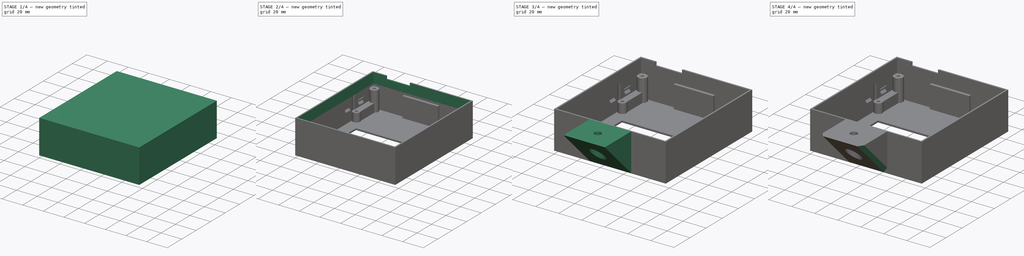
[diagram: build sequence overview — one tinted view per stage of 4, left to right]
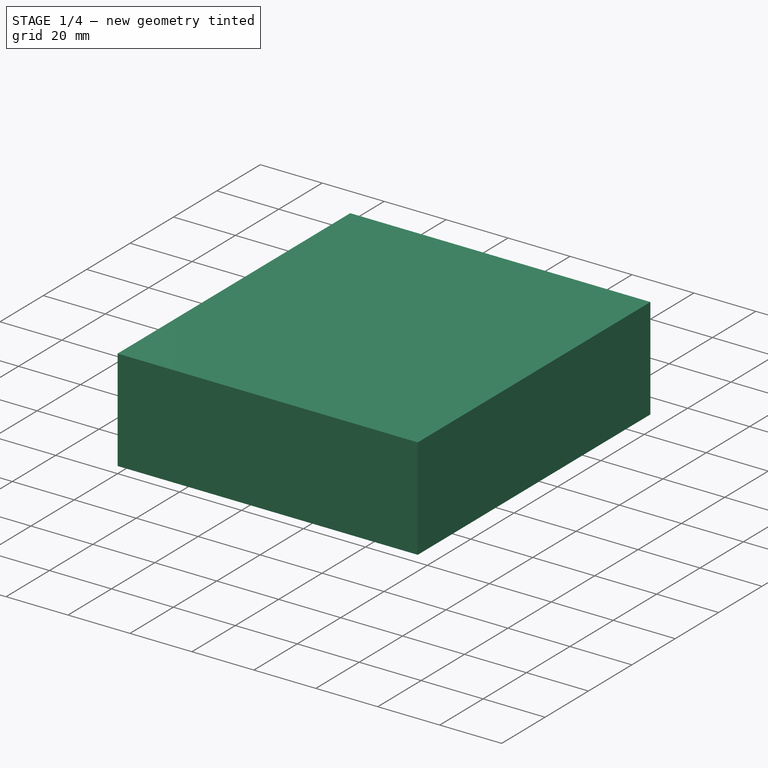
[diagram: stage 1 of 4 — iso view after this stage's code; geometry added in this stage tinted green]
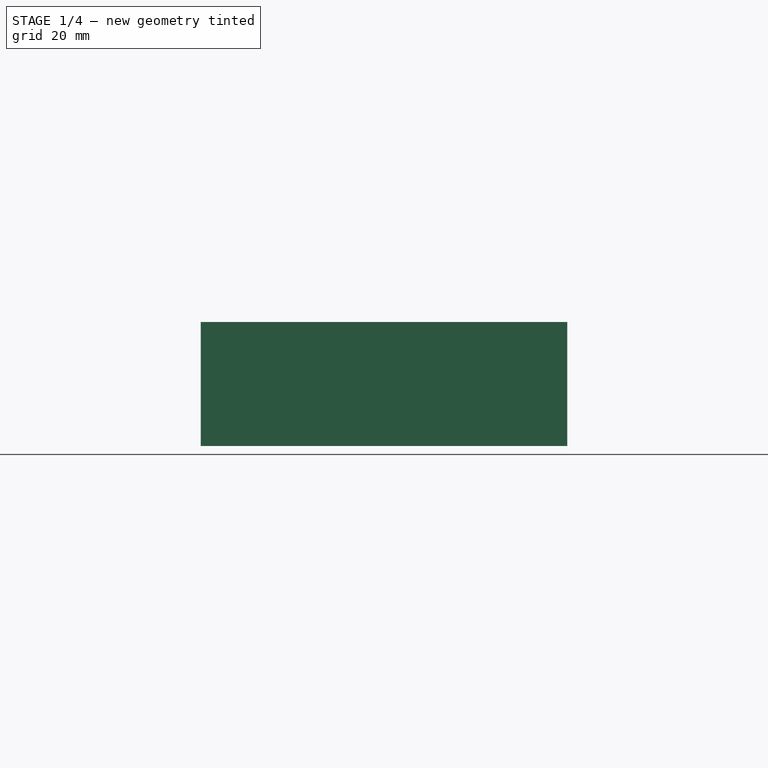
[diagram: stage 1 of 4 — front view after this stage's code; geometry added in this stage tinted green]
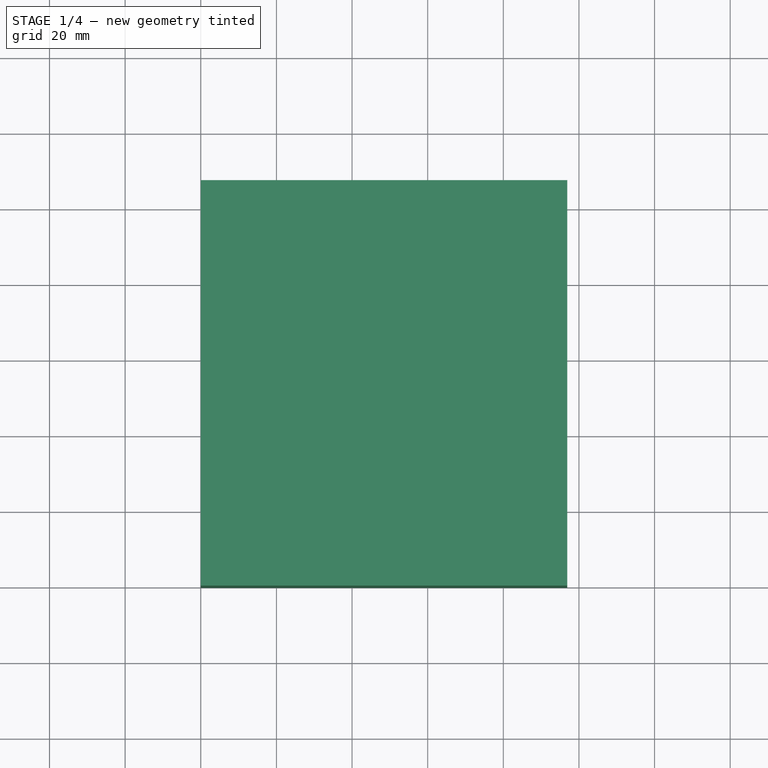
[diagram: stage 1 of 4 — top view after this stage's code; geometry added in this stage tinted green]
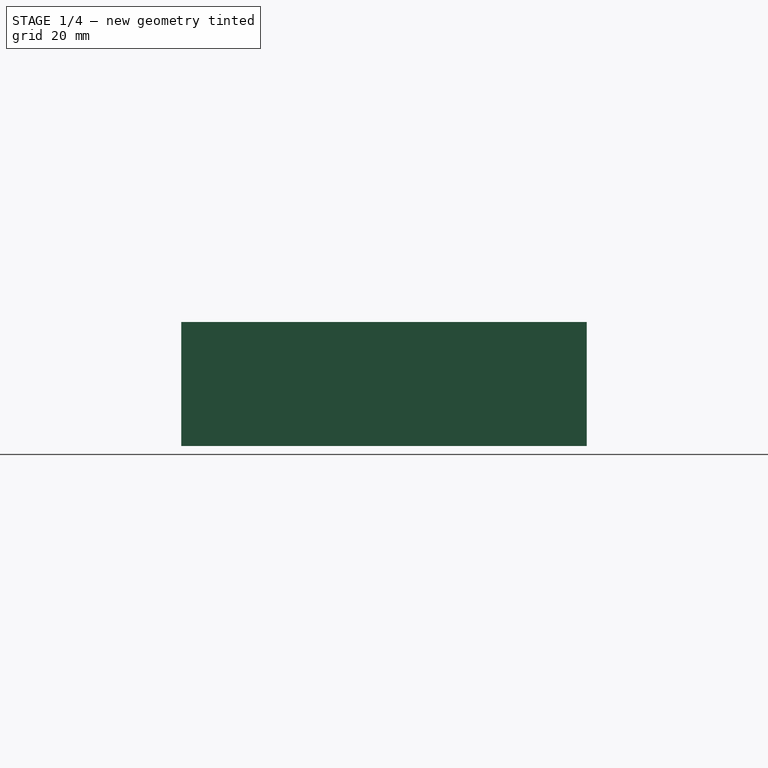
[diagram: stage 1 of 4 — right view after this stage's code; geometry added in this stage tinted green]
FCSTD DOCUMENT  (FreeCAD 0.22R35966 (Git))
Label: Ender 3 Screen
License: All rights reserved
LicenseURL: http://en.wikipedia.org/wiki/All_rights_reserved
objects: Sketcher::SketchObject×6, PartDesign::Pocket×4, PartDesign::Pad×2, PartDesign::Plane×2, PartDesign::Chamfer×2, Part::Feature×1, PartDesign::FeatureBase×1, PartDesign::Body×1
note: 27 computed .brp shape members not serialized (recipe doc carries the construction recipe); baked Part::Feature solids carry a one-line shape summary decoded from their .brp

FEATURE [Part::Feature] Ender_3_LCD_Holder_Top002_solid  label="Ender_3_LCD_Holder_Top002 (Solid)"
  shape: bbox 96.9 x 107.3 x 22.8 mm, 1308 faces (baked)
FEATURE [PartDesign::FeatureBase] BaseFeature001
  BaseFeature = -> Ender_3_LCD_Holder_Top002_solid
  Suppressed = false
FEATURE [Sketcher::SketchObject] Sketch001
  ExternalGeometry = -> [BaseFeature001]
  FullyConstrained = true
  MapMode = 5
  Placement = pos=(0,0,-84.45) rot=(0,0,1;0rad)
  Support = -> [BaseFeature001]
  sketch-geometry (4):
    g0: LineSegment StartX=0 StartY=107.25 StartZ=0 EndX=0 EndY=0 EndZ=0
    g1: LineSegment StartX=0 StartY=0 StartZ=0 EndX=96.9 EndY=0 EndZ=0
    g2: LineSegment StartX=96.9 StartY=0 StartZ=0 EndX=96.9 EndY=107.25 EndZ=0
    g3: LineSegment StartX=96.9 StartY=107.25 StartZ=0 EndX=0 EndY=107.25 EndZ=0
  constraints (10):
    c: Coincident(g0,g1)
    c: Coincident(g1,g2)
    c: Coincident(g2,g3)
    c: Coincident(g3,g0)
    c: Vertical(g0)
    c: Vertical(g2)
    c: Horizontal(g1)
    c: Horizontal(g3)
    c: Coincident(g0,g-6)
    c: Coincident(g1,g-5)
FEATURE [PartDesign::Pad] Pad
  BaseFeature = -> BaseFeature001
  Direction = (0,0,1)
  Length = 10
  Length2 = 10
  Profile = -> Sketch001
  ReferenceAxis = -> Sketch001 [N_Axis]
  Suppressed = false
  Type = 0
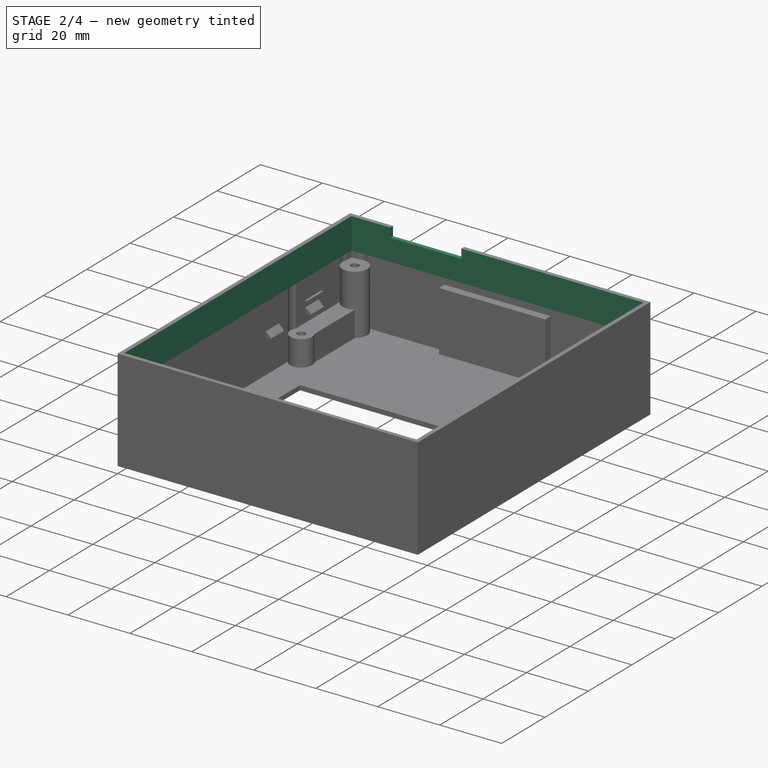
[diagram: stage 2 of 4 — iso view after this stage's code; geometry added in this stage tinted green]
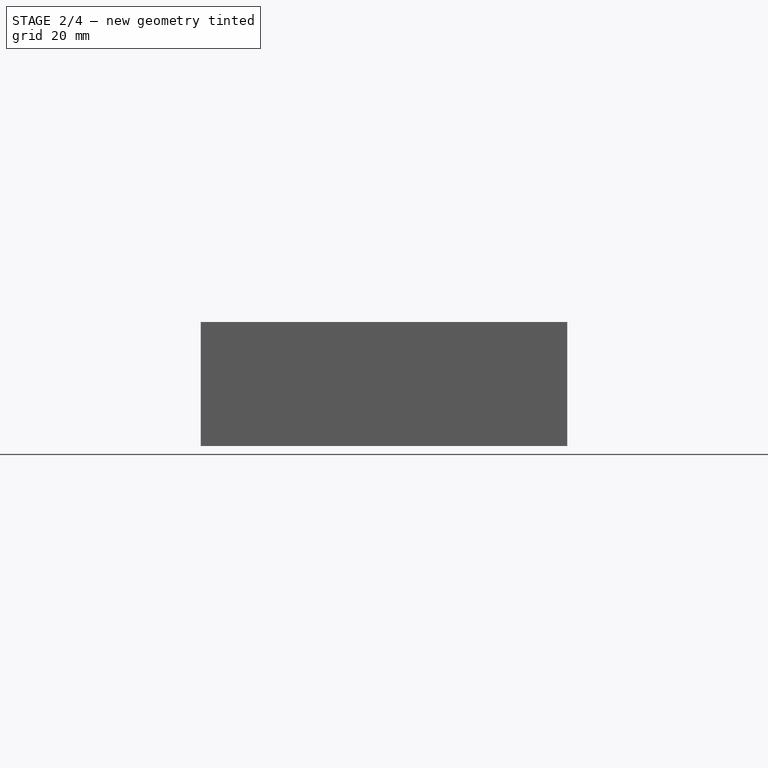
[diagram: stage 2 of 4 — front view after this stage's code; geometry added in this stage tinted green]
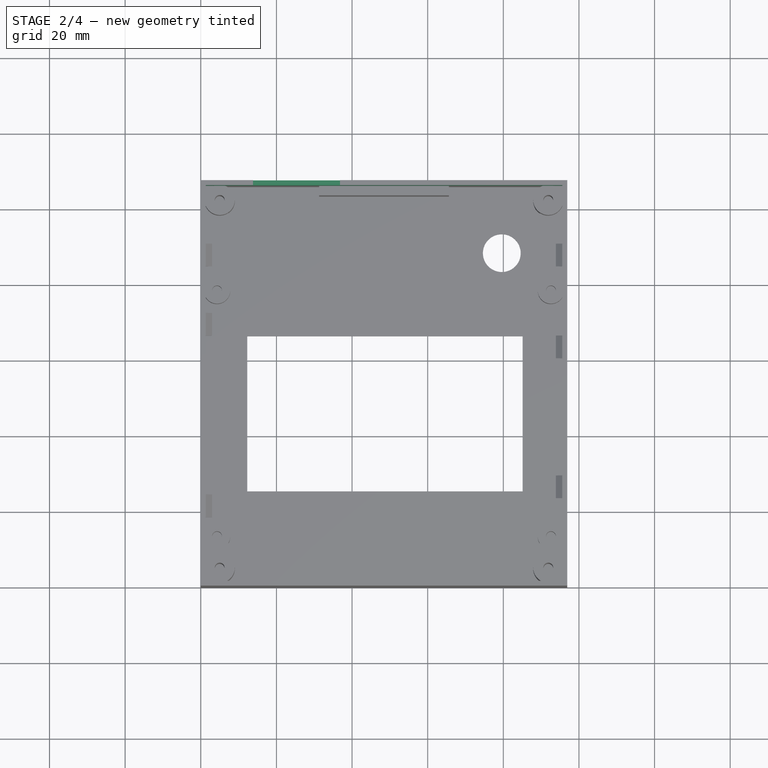
[diagram: stage 2 of 4 — top view after this stage's code; geometry added in this stage tinted green]
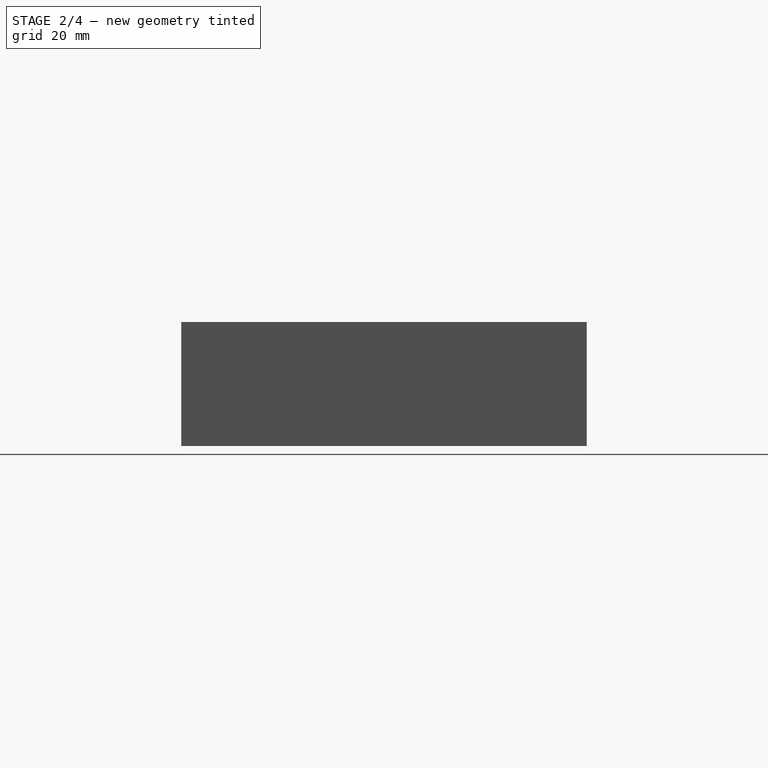
[diagram: stage 2 of 4 — right view after this stage's code; geometry added in this stage tinted green]
FEATURE [Sketcher::SketchObject] Sketch002
  ExternalGeometry = -> [Pad]
  FullyConstrained = true
  MapMode = 5
  Placement = pos=(0,0,-74.45) rot=(0,0,1;0rad)
  Support = -> [Pad]
  sketch-geometry (4):
    g0: LineSegment StartX=1.3 StartY=105.95 StartZ=0 EndX=1.3 EndY=1.3 EndZ=0
    g1: LineSegment StartX=1.3 StartY=1.3 StartZ=0 EndX=95.6 EndY=1.3 EndZ=0
    g2: LineSegment StartX=95.6 StartY=1.3 StartZ=0 EndX=95.6 EndY=105.95 EndZ=0
    g3: LineSegment StartX=95.6 StartY=105.95 StartZ=0 EndX=1.3 EndY=105.95 EndZ=0
  constraints (12):
    c: Coincident(g0,g1)
    c: Coincident(g1,g2)
    c: Coincident(g2,g3)
    c: Coincident(g3,g0)
    c: Vertical(g0)
    c: Vertical(g2)
    c: Horizontal(g1)
    c: Horizontal(g3)
    c: DistanceX(g-4,g0) = 1.3
    c: DistanceX(g2,g-6) = 1.3
    c: DistanceY(g2,g-6) = 1.3
    c: DistanceY(g-6,g1) = 1.3
FEATURE [PartDesign::Pocket] Pocket
  BaseFeature = -> Pad
  Direction = (0,0,-1)
  Length = 10
  Length2 = 5
  Offset = 10
  Profile = -> Sketch002
  ReferenceAxis = -> Sketch002 [N_Axis]
  Suppressed = false
  Type = 0
  expr: Length = Pad.Length
  expr: Offset = Pad.Length
FEATURE [Sketcher::SketchObject] Sketch003
  ExternalGeometry = -> [Pocket]
  FullyConstrained = true
  MapMode = 5
  Placement = pos=(0,0,-74.45) rot=(0,0,1;0rad)
  Support = -> [Pocket]
  sketch-geometry (4):
    g0: LineSegment StartX=13.8 StartY=107.25 StartZ=0 EndX=13.8 EndY=105.95 EndZ=0
    g1: LineSegment StartX=13.8 StartY=105.95 StartZ=0 EndX=36.8 EndY=105.95 EndZ=0
    g2: LineSegment StartX=36.8 StartY=105.95 StartZ=0 EndX=36.8 EndY=107.25 EndZ=0
    g3: LineSegment StartX=36.8 StartY=107.25 StartZ=0 EndX=13.8 EndY=107.25 EndZ=0
  constraints (12):
    c: Coincident(g0,g1)
    c: Coincident(g1,g2)
    c: Coincident(g2,g3)
    c: Coincident(g3,g0)
    c: Vertical(g0)
    c: Vertical(g2)
    c: Horizontal(g1)
    c: Horizontal(g3)
    c: PointOnObject(g0,g-3)
    c: PointOnObject(g1,g-4)
    c: DistanceX(g3,g3) = 23
    c: DistanceX(g-4,g0) = 12.5
FEATURE [PartDesign::Pocket] Pocket001
  BaseFeature = -> Pocket
  Direction = (0,0,-1)
  Length = 3
  Length2 = 5
  Profile = -> Sketch003
  ReferenceAxis = -> Sketch003 [N_Axis]
  Suppressed = false
  Type = 0
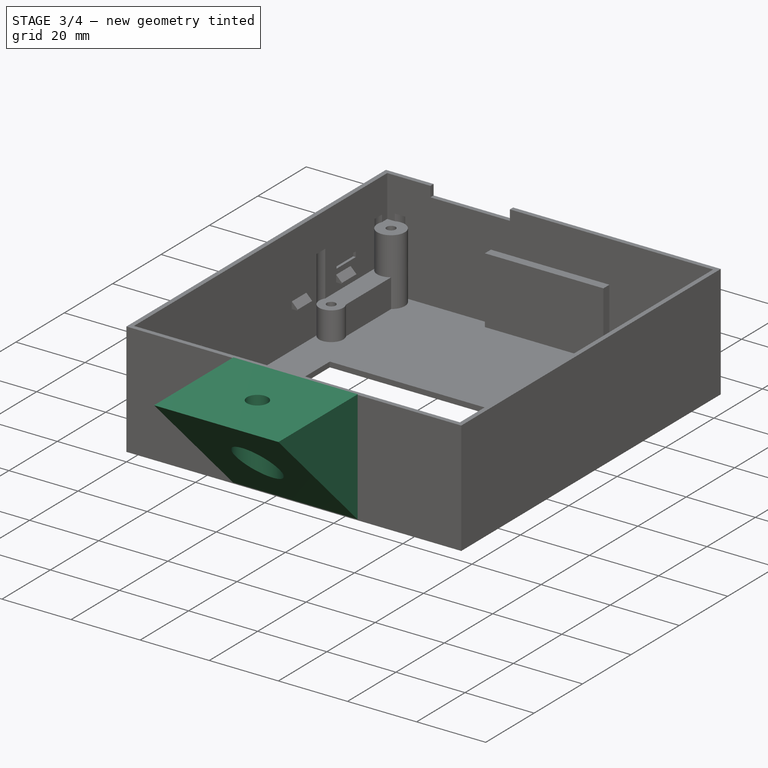
[diagram: stage 3 of 4 — iso view after this stage's code; geometry added in this stage tinted green]
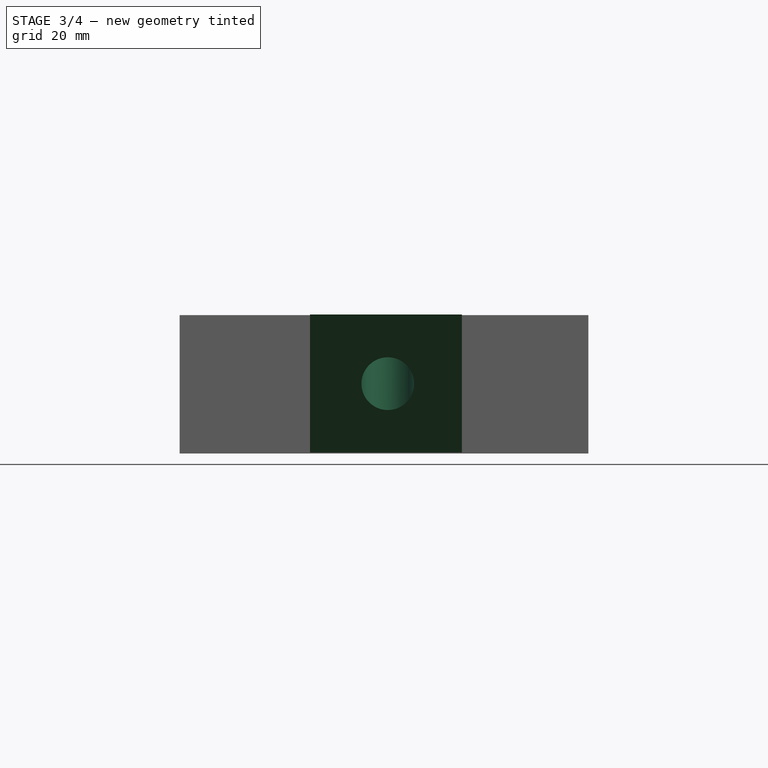
[diagram: stage 3 of 4 — front view after this stage's code; geometry added in this stage tinted green]
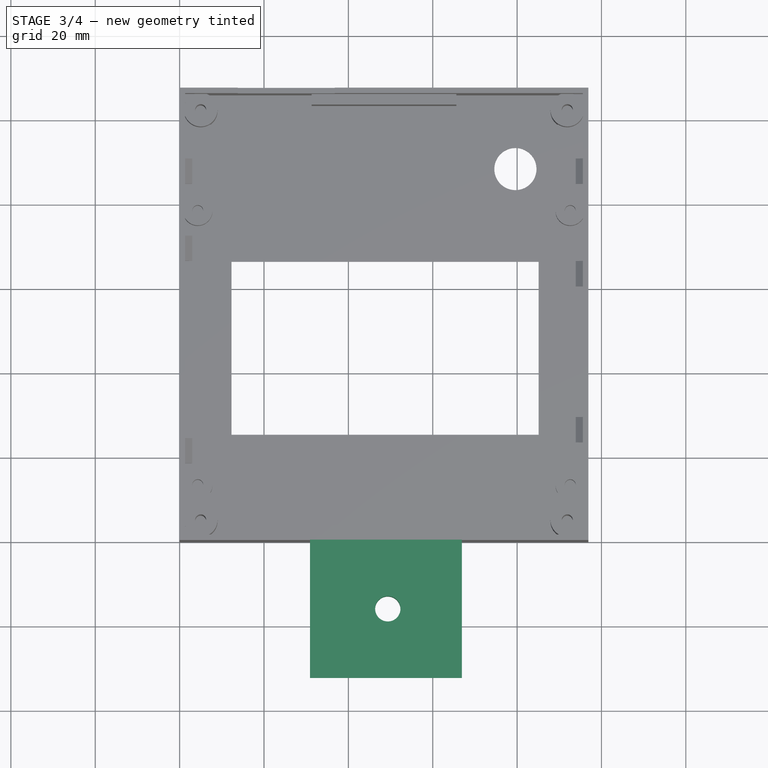
[diagram: stage 3 of 4 — top view after this stage's code; geometry added in this stage tinted green]
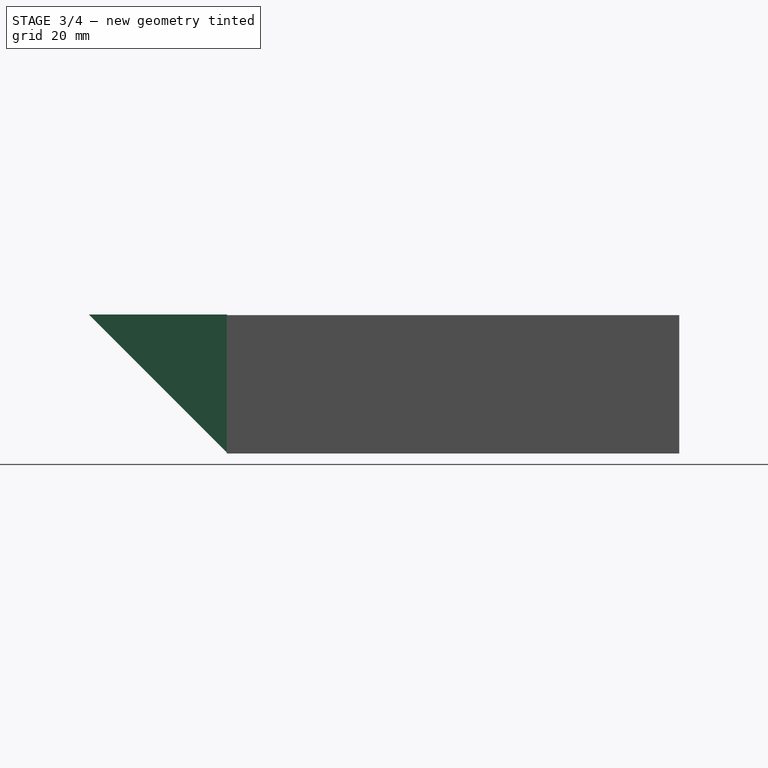
[diagram: stage 3 of 4 — right view after this stage's code; geometry added in this stage tinted green]
FEATURE [PartDesign::Plane] DatumPlane
  AttachmentOffset = pos=(0,0,-30) rot=(0,0,1;0rad)
  Length = 167.171
  MapMode = 5
  Placement = pos=(66.9,0,0) rot=(0.57735,0.57735,0.57735;2.0944rad)
  ResizeMode = 0
  Support = -> [Pocket001]
  Width = 159.46
FEATURE [Sketcher::SketchObject] Sketch004
  ExternalGeometry = -> [Pocket001]
  FullyConstrained = false
  MapMode = 5
  Placement = pos=(66.9,0,0) rot=(0.57735,0.57735,0.57735;2.0944rad)
  Support = -> [DatumPlane]
  expr: Constraints[6] = 22.79 mm + Pad.Length
  sketch-geometry (3):
    g0: LineSegment StartX=0.0789676 StartY=-74.2989 StartZ=0 EndX=-32.711 EndY=-74.2989 EndZ=0
    g1: LineSegment StartX=-32.711 StartY=-74.2989 StartZ=0 EndX=0.0789676 EndY=-107.089 EndZ=0
    g2: LineSegment StartX=0.0789676 StartY=-107.089 StartZ=0 EndX=0.0789676 EndY=-74.2989 EndZ=0
  constraints (8):
    c: Horizontal(g0)
    c: Coincident(g0,g1)
    c: Coincident(g1,g2)
    c: Coincident(g2,g0)
    c: Vertical(g2)
    c: Angle(g1,g0) = 0.785398
    c: Distance(g2,g2) = 32.79
    c: DistanceX(g0,g0) = 32.79  'MountDepth'
FEATURE [PartDesign::Pad] Pad001
  BaseFeature = -> Pocket001
  Direction = (1,0,0)
  Length = 36
  Length2 = 10
  Profile = -> Sketch004
  ReferenceAxis = -> Sketch004 [N_Axis]
  Reversed = true
  Suppressed = false
  Type = 0
FEATURE [PartDesign::Plane] DatumPlane001
  Length = 148.024
  MapMode = 5
  Placement = pos=(0,0,-107.25) rot=(1,0,0;3.14159rad)
  ResizeMode = 0
  Support = -> [Pad001]
  Width = 166.085
FEATURE [Sketcher::SketchObject] Sketch005
  ExternalGeometry = -> [Pad001]
  FullyConstrained = true
  MapMode = 5
  Placement = pos=(0,0,-107.25) rot=(1,0,0;3.14159rad)
  Support = -> [DatumPlane001]
  expr: Constraints[2] = <<Sketch004>>.Constraints.MountDepth / 2
  sketch-geometry (1):
    g0: Circle CenterX=49.35 CenterY=16.316 CenterZ=0 NormalX=0 NormalY=0 NormalZ=1 AngleXU=0 Radius=6.25
  constraints (3):
    c: Diameter(g0) = 12.5
    c: DistanceX(g-3,g0) = 18.45
    c: DistanceY(g0,g-3) = 16.395
FEATURE [PartDesign::Pocket] Pocket002
  BaseFeature = -> Pad001
  Direction = (0,0,1)
  Length = 25
  Length2 = 5
  Profile = -> Sketch005
  ReferenceAxis = -> Sketch005 [N_Axis]
  Suppressed = false
  Type = 0
FEATURE [Sketcher::SketchObject] Sketch006
  ExternalGeometry = -> [Pocket002]
  FullyConstrained = true
  MapMode = 5
  Placement = pos=(0,0,-82.25) rot=(1,0,0;3.14159rad)
  Support = -> [Pocket002]
  sketch-geometry (1):
    g0: Circle CenterX=49.35 CenterY=16.316 CenterZ=0 NormalX=0 NormalY=0 NormalZ=1 AngleXU=0 Radius=3
  constraints (2):
    c: Coincident(g0,g-3)
    c: Diameter(g0) = 6
FEATURE [PartDesign::Pocket] Pocket003
  BaseFeature = -> Pocket002
  Direction = (0,0,1)
  Length = 5
  Length2 = 5
  Profile = -> Sketch006
  ReferenceAxis = -> Sketch006 [N_Axis]
  Suppressed = false
  Type = 1
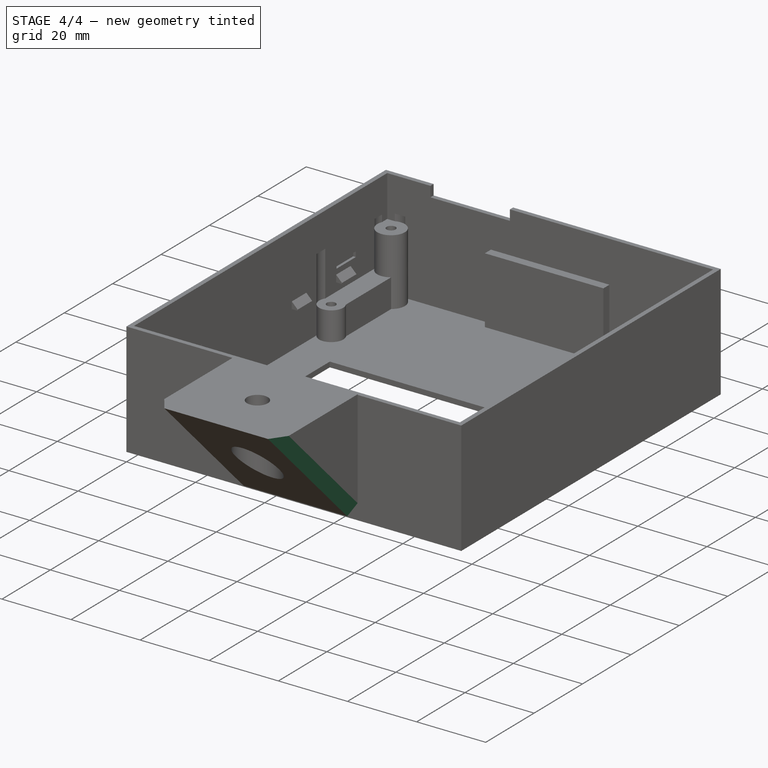
[diagram: stage 4 of 4 — iso view after this stage's code; geometry added in this stage tinted green]
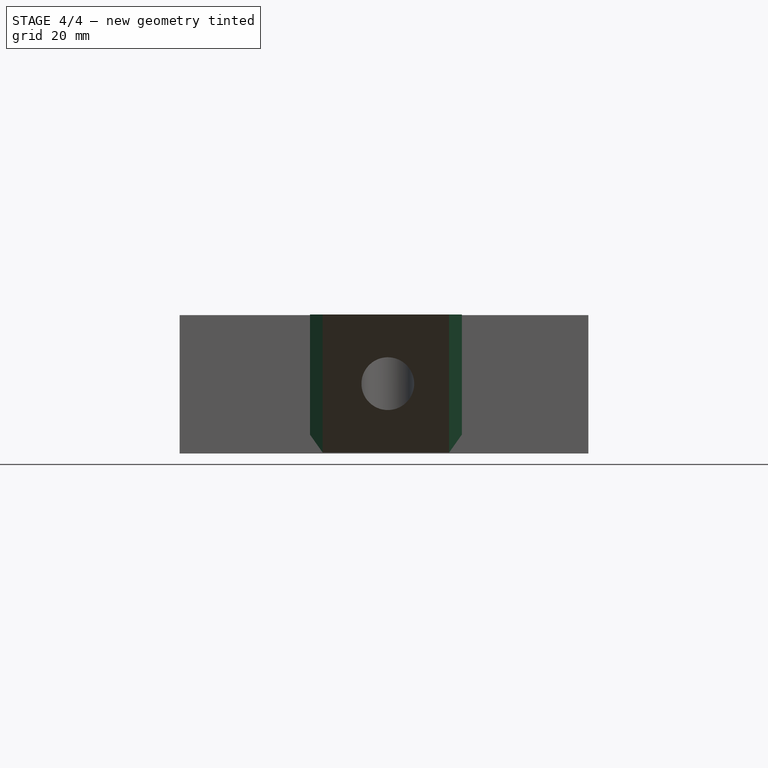
[diagram: stage 4 of 4 — front view after this stage's code; geometry added in this stage tinted green]
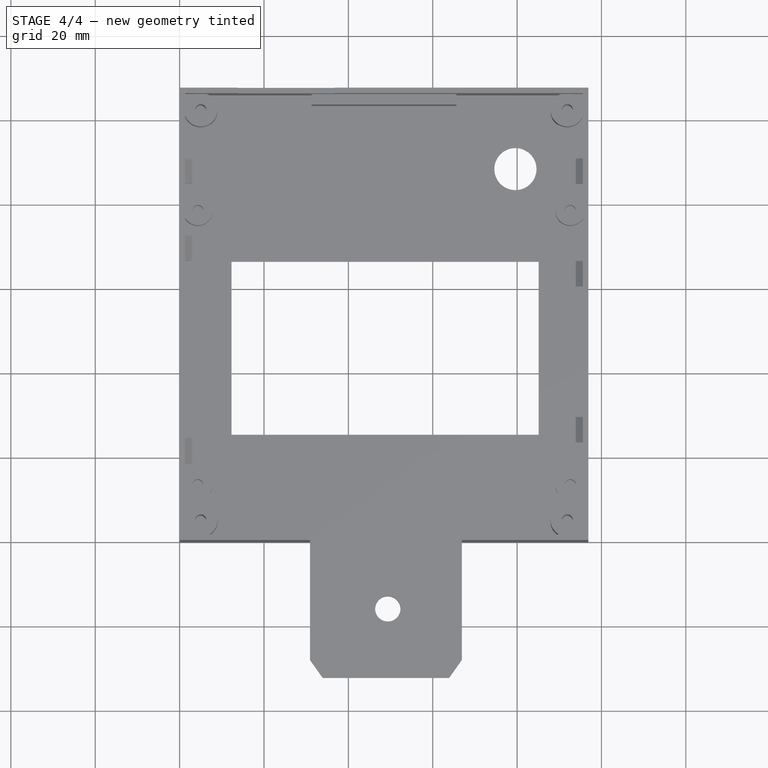
[diagram: stage 4 of 4 — top view after this stage's code; geometry added in this stage tinted green]
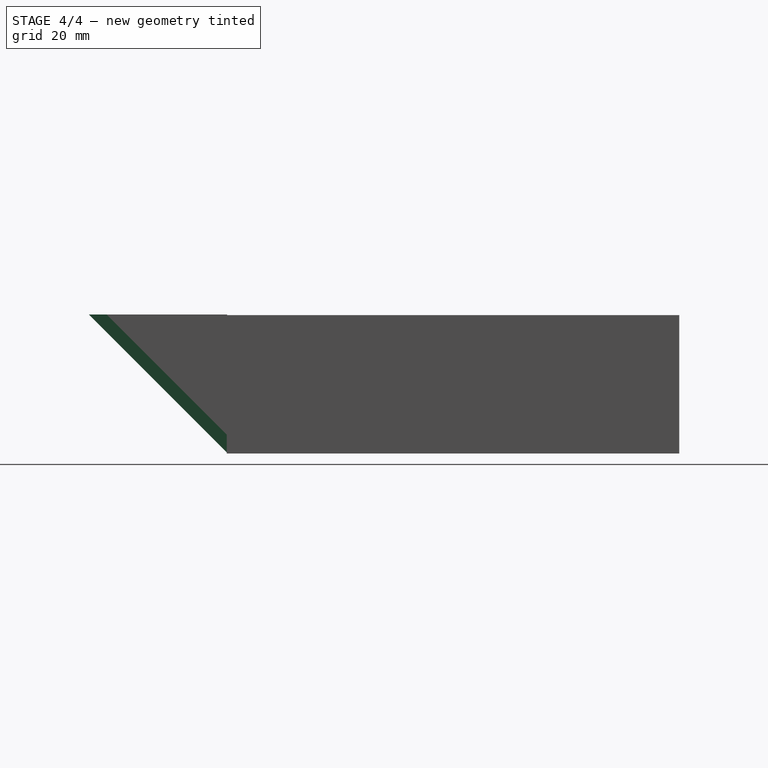
[diagram: stage 4 of 4 — right view after this stage's code; geometry added in this stage tinted green]
FEATURE [PartDesign::Chamfer] Chamfer
  Angle = 45
  Base = -> Pocket003 [Edge3101]
  BaseFeature = -> Pocket003
  ChamferType = 0
  FlipDirection = false
  Size = 3
  Size2 = 1
  SupportTransform = false
  Suppressed = false
  UseAllEdges = false
FEATURE [PartDesign::Chamfer] Chamfer001
  Angle = 45
  Base = -> Chamfer [Edge17,Edge21]
  BaseFeature = -> Chamfer
  ChamferType = 0
  FlipDirection = false
  Size = 3
  Size2 = 1
  SupportTransform = false
  Suppressed = false
  UseAllEdges = false
FEATURE [PartDesign::Body] Body001  label="Top"
  BaseFeature = -> Ender_3_LCD_Holder_Top002_solid
  Group = -> [BaseFeature001,Sketch001,Pad,Sketch002,Pocket,Sketch003,Pocket001,DatumPlane,Sketch004,Pad001,DatumPlane001,Sketch005,Pocket002,Sketch006,Pocket003,Chamfer,Chamfer001]
  Origin = -> Origin001
  Placement = pos=(173,-1.6e-14,0) rot=(0,0,1;0rad)
  Tip = -> Chamfer001
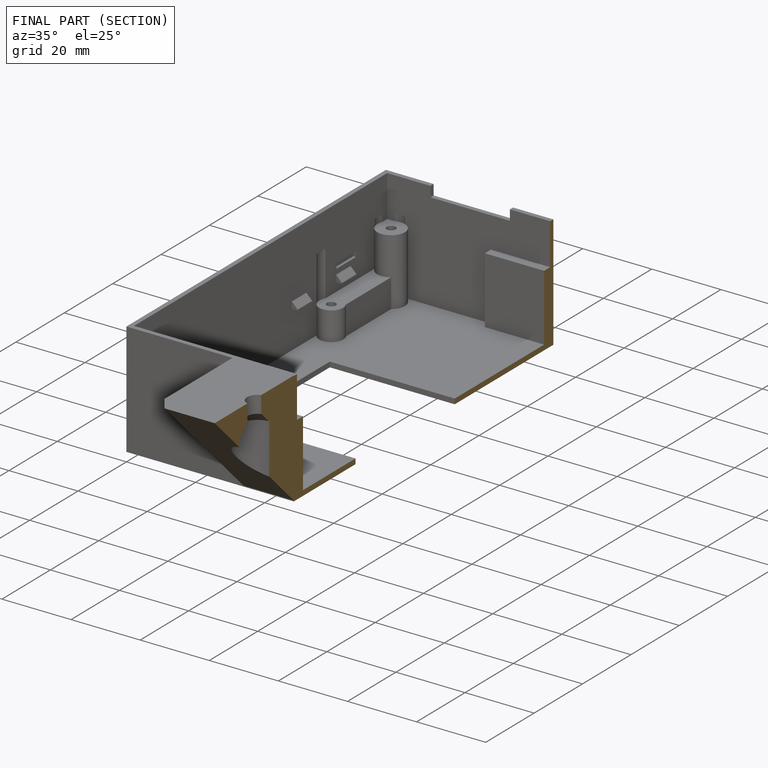
[diagram: finished part — half-section view (interior)]
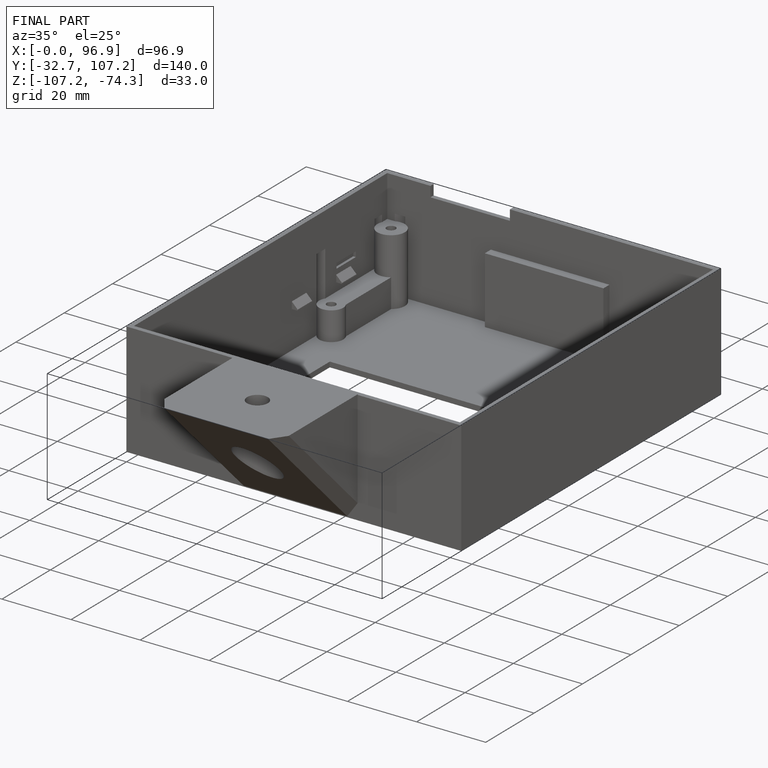
[diagram: finished part — iso view with bounding-box wireframe]
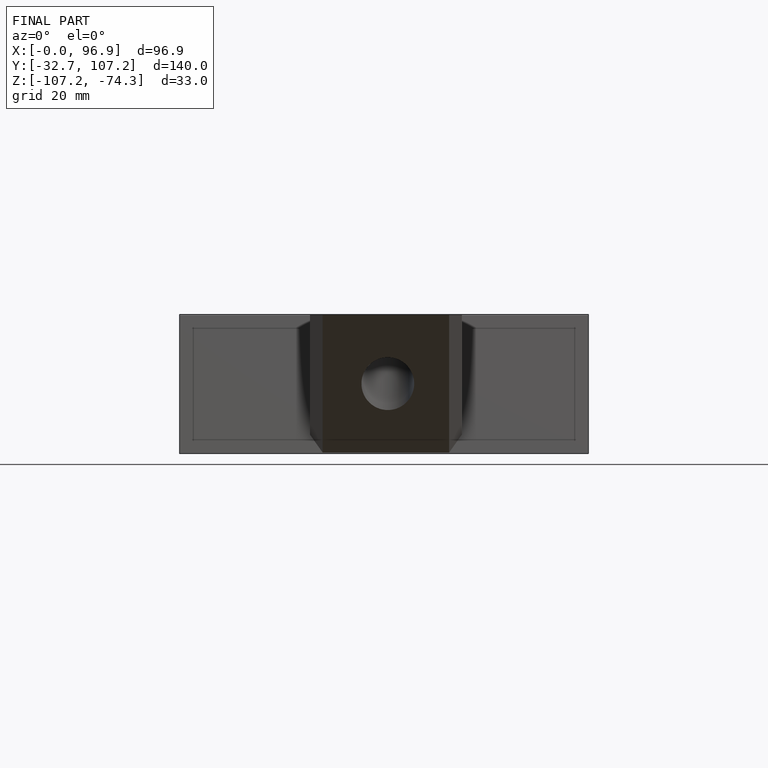
[diagram: finished part — front view with bounding-box wireframe]
